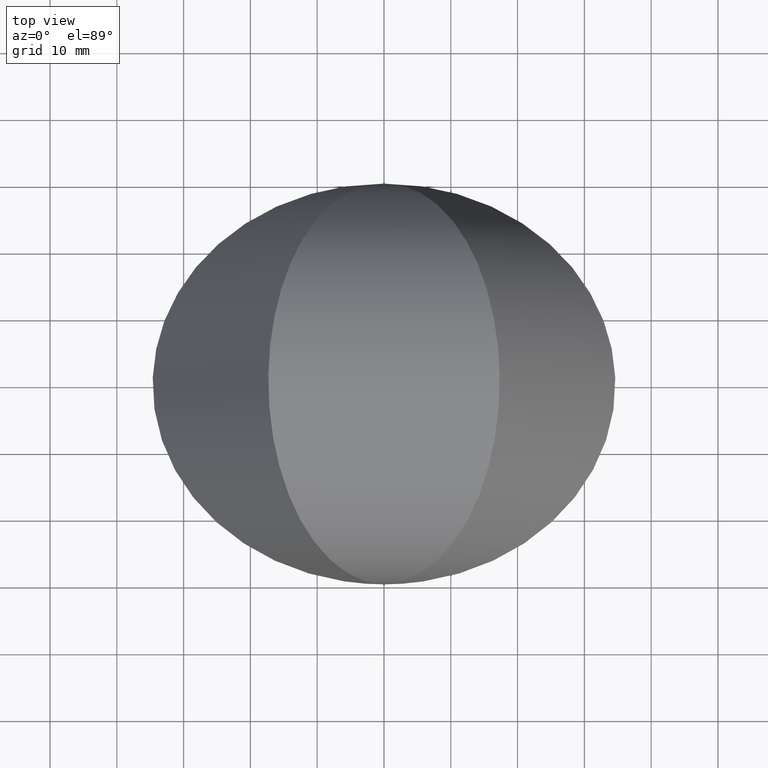
[diagram: clean part render]
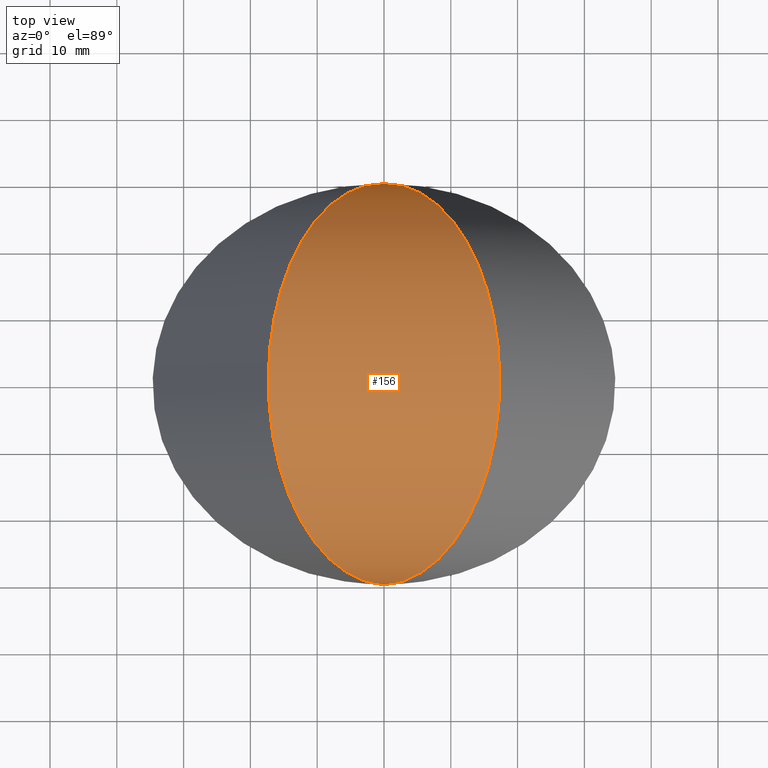
[diagram: same view with one face highlighted and labeled with its STEP entity id]
A machine part, top view. The second image highlights one B-rep face of the part: STEP entity #156.
In plain terms, the highlighted cylindrical surface (partial cylindrical patch) has radius 30 mm, axis along (-1, -0, 0).
Its self-contained STEP definition (entity closure, byte-faithful):
#18 = CARTESIAN_POINT ( 'NONE',  ( 6.938893903907228378E-15, -30.00000000000000000, 6.938893903907228378E-15 ) ) ;
#19 = CARTESIAN_POINT ( 'NONE',  ( -34.64101615137789025, -30.00000000000001421, 60.00000000000000711 ) ) ;
#32 = CARTESIAN_POINT ( 'NONE',  ( -6.938893903907228378E-15, 30.00000000000000000, 0.000000000000000000 ) ) ;
#34 = CARTESIAN_POINT ( 'NONE',  ( 34.64101615137736445, -29.99999999999999289, 60.00000000000000711 ) ) ;
#36 = ORIENTED_EDGE ( 'NONE', *, *, #151, .T. ) ;
#50 = FACE_OUTER_BOUND ( 'NONE', #147, .T. ) ;
#61 = CARTESIAN_POINT ( 'NONE',  ( 6.938893903907228378E-15, -30.00000000000000000, 6.938893903907228378E-15 ) ) ;
#85 =( BOUNDED_CURVE ( )  B_SPLINE_CURVE ( 3, ( #237, #180, #19, #61 ),
 .UNSPECIFIED., .F., .T. ) 
 B_SPLINE_CURVE_WITH_KNOTS ( ( 4, 4 ),
 ( 4.712388980384689674, 7.853981633974482790 ),
 .UNSPECIFIED. ) 
 CURVE ( )  GEOMETRIC_REPRESENTATION_ITEM ( )  RATIONAL_B_SPLINE_CURVE ( ( 1.000000000000000000, 0.3333333333333333703, 0.3333333333333333703, 1.000000000000000000 ) ) 
 REPRESENTATION_ITEM ( '' )  );
#86 = EDGE_CURVE ( 'NONE', #149, #234, #110, .T. ) ;
#90 = ORIENTED_EDGE ( 'NONE', *, *, #86, .F. ) ;
#110 =( BOUNDED_CURVE ( )  B_SPLINE_CURVE ( 3, ( #32, #255, #34, #153 ),
 .UNSPECIFIED., .F., .T. ) 
 B_SPLINE_CURVE_WITH_KNOTS ( ( 4, 4 ),
 ( 4.712388980384689674, 7.853981633974482790 ),
 .UNSPECIFIED. ) 
 CURVE ( )  GEOMETRIC_REPRESENTATION_ITEM ( )  RATIONAL_B_SPLINE_CURVE ( ( 1.000000000000000000, 0.3333333333333333703, 0.3333333333333333703, 1.000000000000000000 ) ) 
 REPRESENTATION_ITEM ( '' )  );
#119 = DIRECTION ( 'NONE',  ( -1.000000000000000000, -6.123233995736766282E-16, 0.000000000000000000 ) ) ;
#121 = DIRECTION ( 'NONE',  ( 0.000000000000000000, 0.000000000000000000, 1.000000000000000000 ) ) ;
#147 = EDGE_LOOP ( 'NONE', ( #36, #90 ) ) ;
#149 = VERTEX_POINT ( 'NONE', #236 ) ;
#151 = EDGE_CURVE ( 'NONE', #149, #234, #85, .T. ) ;
#153 = CARTESIAN_POINT ( 'NONE',  ( 6.938893903907228378E-15, -30.00000000000000000, 6.938893903907228378E-15 ) ) ;
#156 = ADVANCED_FACE ( 'NONE', ( #50 ), #226, .T. ) ;
#180 = CARTESIAN_POINT ( 'NONE',  ( -34.64101615137791867, 30.00000000000000355, 59.99999999999998579 ) ) ;
#189 = AXIS2_PLACEMENT_3D ( 'NONE', #261, #119, #121 ) ;
#226 = CYLINDRICAL_SURFACE ( 'NONE', #189, 30.00000000000000000 ) ;
#234 = VERTEX_POINT ( 'NONE', #18 ) ;
#236 = CARTESIAN_POINT ( 'NONE',  ( -6.938893903907228378E-15, 30.00000000000000000, 0.000000000000000000 ) ) ;
#237 = CARTESIAN_POINT ( 'NONE',  ( -6.938893903907228378E-15, 30.00000000000000000, 0.000000000000000000 ) ) ;
#255 = CARTESIAN_POINT ( 'NONE',  ( 34.64101615137732182, 30.00000000000002487, 60.00000000000000711 ) ) ;
#261 = CARTESIAN_POINT ( 'NONE',  ( 0.000000000000000000, 0.000000000000000000, 0.000000000000000000 ) ) ;